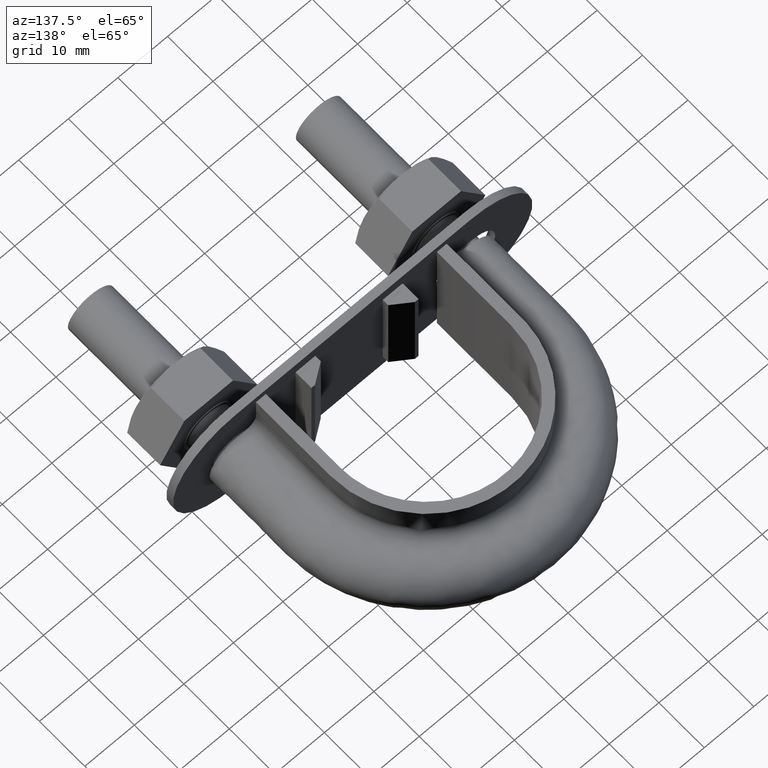
[diagram: clean part render]
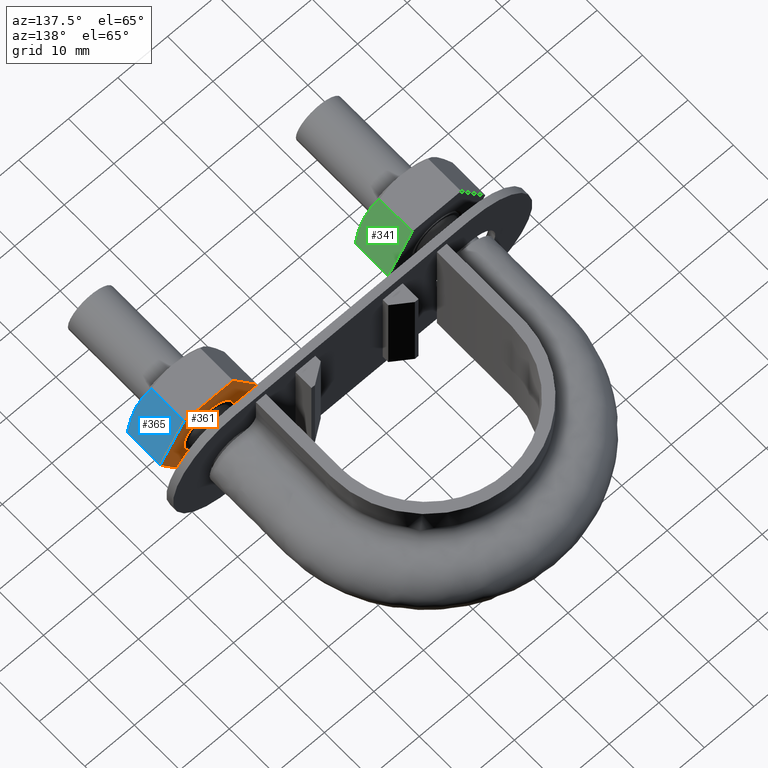
[diagram: same view with three faces highlighted in distinct colors, each labeled with its STEP entity id]
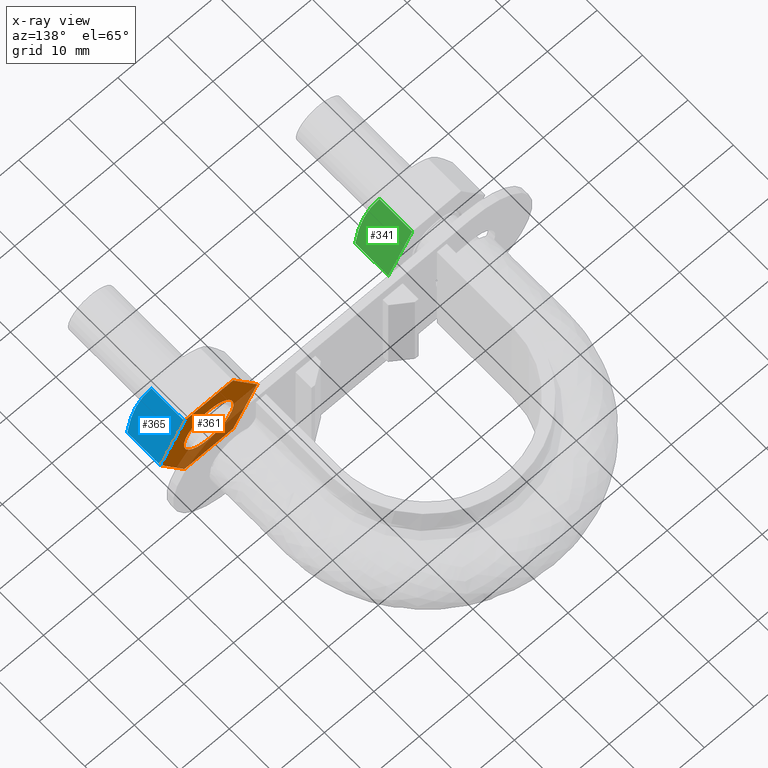
[diagram: x-ray of the same camera — body ghosted, the three highlighted faces saturated]
A machine part, auxiliary view with three faces highlighted in distinct colors.
The next image is the same camera in x-ray (body ghosted, the three faces saturated) — at least one of them is partly hidden behind the body in this view.
Their STEP definitions:

[orange] entity #361 — the highlighted planar face has unit normal (-0, -1, -0).
#361 = ADVANCED_FACE( '', ( #594, #595 ), #596, .F. );
#594 = FACE_OUTER_BOUND( '', #1672, .T. );
#595 = FACE_BOUND( '', #1673, .T. );
#596 = PLANE( '', #1674 );
#1672 = EDGE_LOOP( '', ( #2385, #2386, #2387, #2388, #2389, #2390, #2391, #2392, #2393, #2394, #2395, #2396 ) );
#1673 = EDGE_LOOP( '', ( #2397 ) );
#1674 = AXIS2_PLACEMENT_3D( '', #2398, #2399, #2400 );
#2385 = ORIENTED_EDGE( '', *, *, #2718, .T. );
#2386 = ORIENTED_EDGE( '', *, *, #2719, .T. );
#2387 = ORIENTED_EDGE( '', *, *, #2703, .T. );
#2388 = ORIENTED_EDGE( '', *, *, #2720, .T. );
#2389 = ORIENTED_EDGE( '', *, *, #2721, .T. );
#2390 = ORIENTED_EDGE( '', *, *, #2712, .T. );
#2391 = ORIENTED_EDGE( '', *, *, #2708, .T. );
#2392 = ORIENTED_EDGE( '', *, *, #2722, .T. );
#2393 = ORIENTED_EDGE( '', *, *, #2723, .T. );
#2394 = ORIENTED_EDGE( '', *, *, #2724, .T. );
#2395 = ORIENTED_EDGE( '', *, *, #2725, .T. );
#2396 = ORIENTED_EDGE( '', *, *, #2726, .T. );
#2397 = ORIENTED_EDGE( '', *, *, #2716, .F. );
#2398 = CARTESIAN_POINT( '', ( 13.2000000000004, 26.0000000000000, 8.18610159412095E-010 ) );
#2399 = DIRECTION( '', ( -2.44921270764475E-016, -1.00000000000000, -3.06151588455594E-016 ) );
#2400 = DIRECTION( '', ( 0.000000000000000, 3.06151588455594E-016, -1.00000000000000 ) );
#2703 = EDGE_CURVE( '', #3061, #3062, #3063, .F. );
#2708 = EDGE_CURVE( '', #3071, #3069, #3072, .F. );
#2712 = EDGE_CURVE( '', #3078, #3071, #3079, .T. );
#2716 = EDGE_CURVE( '', #3084, #3084, #3085, .F. );
#2718 = EDGE_CURVE( '', #3088, #3089, #3090, .F. );
#2719 = EDGE_CURVE( '', #3089, #3061, #3091, .T. );
#2720 = EDGE_CURVE( '', #3062, #3092, #3093, .T. );
#2721 = EDGE_CURVE( '', #3092, #3078, #3094, .F. );
#2722 = EDGE_CURVE( '', #3069, #3095, #3096, .T. );
#2723 = EDGE_CURVE( '', #3095, #3097, #3098, .F. );
#2724 = EDGE_CURVE( '', #3097, #3099, #3100, .T. );
#2725 = EDGE_CURVE( '', #3099, #3101, #3102, .F. );
#2726 = EDGE_CURVE( '', #3101, #3088, #3103, .T. );
#3061 = VERTEX_POINT( '', #3797 );
#3062 = VERTEX_POINT( '', #3798 );
#3063 = CIRCLE( '', #3799, 9.80000000000000 );
#3069 = VERTEX_POINT( '', #3807 );
#3071 = VERTEX_POINT( '', #3810 );
#3072 = CIRCLE( '', #3811, 9.80000000000000 );
#3078 = VERTEX_POINT( '', #3828 );
#3079 = LINE( '', #3829, #3830 );
#3084 = VERTEX_POINT( '', #3841 );
#3085 = CIRCLE( '', #3842, 5.00000000000000 );
#3088 = VERTEX_POINT( '', #3845 );
#3089 = VERTEX_POINT( '', #3846 );
#3090 = CIRCLE( '', #3847, 9.80000000000000 );
#3091 = LINE( '', #3848, #3849 );
#3092 = VERTEX_POINT( '', #3850 );
#3093 = LINE( '', #3851, #3852 );
#3094 = CIRCLE( '', #3853, 9.80000000000000 );
#3095 = VERTEX_POINT( '', #3854 );
#3096 = LINE( '', #3855, #3856 );
#3097 = VERTEX_POINT( '', #3857 );
#3098 = CIRCLE( '', #3858, 9.80000000000000 );
#3099 = VERTEX_POINT( '', #3859 );
#3100 = LINE( '', #3860, #3861 );
#3101 = VERTEX_POINT( '', #3862 );
#3102 = CIRCLE( '', #3863, 9.80000000000000 );
#3103 = LINE( '', #3864, #3865 );
#3797 = CARTESIAN_POINT( '', ( 27.8774993600129, 26.0000000000000, 8.49999999959259 ) );
#3798 = CARTESIAN_POINT( '', ( 27.9224662532239, 26.0000000000000, 8.47403835168756 ) );
#3799 = AXIS2_PLACEMENT_3D( '', #4205, #4206, #4207 );
#3807 = CARTESIAN_POINT( '', ( 27.8774993585885, 26.0000000000000, -8.50000000040992 ) );
#3810 = CARTESIAN_POINT( '', ( 27.9224662518077, 26.0000000000000, -8.47403835251024 ) );
#3811 = AXIS2_PLACEMENT_3D( '', #4214, #4215, #4216 );
#3828 = CARTESIAN_POINT( '', ( 32.7999656118170, 26.0000000000000, -0.0259616487193824 ) );
#3829 = CARTESIAN_POINT( '', ( 27.9112159314578, 26.0000000000000, -8.49352447895381 ) );
#3830 = VECTOR( '', #4218, 1000.00000000000 );
#3841 = CARTESIAN_POINT( '', ( 23.0000000000000, 26.0000000000000, -4.99999999999999 ) );
#3842 = AXIS2_PLACEMENT_3D( '', #4223, #4224, #4225 );
#3845 = CARTESIAN_POINT( '', ( 18.0775337481923, 26.0000000000000, 8.47403835251025 ) );
#3846 = CARTESIAN_POINT( '', ( 18.1225006414071, 26.0000000000000, 8.50000000040744 ) );
#3847 = AXIS2_PLACEMENT_3D( '', #4229, #4230, #4231 );
#3848 = CARTESIAN_POINT( '', ( 13.2000000007104, 26.0000000000000, 8.50000000081862 ) );
#3849 = VECTOR( '', #4232, 1000.00000000000 );
#3850 = CARTESIAN_POINT( '', ( 32.7999656118213, 26.0000000000000, 0.0259616470828531 ) );
#3851 = CARTESIAN_POINT( '', ( 27.9112159328771, 26.0000000000000, 8.49352447813351 ) );
#3852 = VECTOR( '', #4233, 1000.00000000000 );
#3853 = AXIS2_PLACEMENT_3D( '', #4234, #4235, #4236 );
#3854 = CARTESIAN_POINT( '', ( 18.1225006414115, 26.0000000000000, -8.50000000040992 ) );
#3855 = CARTESIAN_POINT( '', ( 13.2000000000004, 26.0000000000000, -8.50000000040992 ) );
#3856 = VECTOR( '', #4237, 1000.00000000000 );
#3857 = CARTESIAN_POINT( '', ( 18.0775337467761, 26.0000000000000, -8.47403835168755 ) );
#3858 = AXIS2_PLACEMENT_3D( '', #4238, #4239, #4240 );
#3859 = CARTESIAN_POINT( '', ( 13.2000343881787, 26.0000000000000, -0.0259616470828507 ) );
#3860 = CARTESIAN_POINT( '', ( 13.1887840678318, 26.0000000000000, -0.00647552063689597 ) );
#3861 = VECTOR( '', #4241, 1000.00000000000 );
#3862 = CARTESIAN_POINT( '', ( 13.2000343881830, 26.0000000000000, 0.0259616487193982 ) );
#3863 = AXIS2_PLACEMENT_3D( '', #4242, #4243, #4244 );
#3864 = CARTESIAN_POINT( '', ( 13.1887840678332, 26.0000000000000, 0.00647552227582464 ) );
#3865 = VECTOR( '', #4245, 1000.00000000000 );
#4205 = CARTESIAN_POINT( '', ( 23.0000000000000, 26.0000000000000, 7.29613851974116E-015 ) );
#4206 = DIRECTION( '', ( -2.44921270764475E-016, -1.00000000000000, -3.06151588455594E-016 ) );
#4207 = DIRECTION( '', ( 0.000000000000000, 3.06151588455594E-016, -1.00000000000000 ) );
#4214 = CARTESIAN_POINT( '', ( 23.0000000000000, 26.0000000000000, 7.29613851974116E-015 ) );
#4215 = DIRECTION( '', ( -2.44921270764475E-016, -1.00000000000000, -3.06151588455594E-016 ) );
#4216 = DIRECTION( '', ( 0.000000000000000, 3.06151588455594E-016, -1.00000000000000 ) );
#4218 = DIRECTION( '', ( -0.500000000072353, 3.87595688398672E-016, -0.866025403742666 ) );
#4223 = CARTESIAN_POINT( '', ( 23.0000000000000, 26.0000000000000, 7.29613851974116E-015 ) );
#4224 = DIRECTION( '', ( -2.44921270764475E-016, -1.00000000000000, -3.06151588455594E-016 ) );
#4225 = DIRECTION( '', ( 0.000000000000000, 3.06151588455594E-016, -1.00000000000000 ) );
#4229 = CARTESIAN_POINT( '', ( 23.0000000000000, 26.0000000000000, 7.29613851974116E-015 ) );
#4230 = DIRECTION( '', ( -2.44921270764475E-016, -1.00000000000000, -3.06151588455594E-016 ) );
#4231 = DIRECTION( '', ( 0.000000000000000, 3.06151588455594E-016, -1.00000000000000 ) );
#4232 = DIRECTION( '', ( 1.00000000000000, -2.44921270738902E-016, -8.35309044156739E-011 ) );
#4233 = DIRECTION( '', ( 0.499999999927673, 1.42674417659764E-016, -0.866025403826196 ) );
#4234 = CARTESIAN_POINT( '', ( 23.0000000000000, 26.0000000000000, 7.29613851974116E-015 ) );
#4235 = DIRECTION( '', ( -2.44921270764475E-016, -1.00000000000000, -3.06151588455594E-016 ) );
#4236 = DIRECTION( '', ( 0.000000000000000, 3.06151588455594E-016, -1.00000000000000 ) );
#4237 = DIRECTION( '', ( -1.00000000000000, 2.44921270764475E-016, -2.55724612628385E-026 ) );
#4238 = CARTESIAN_POINT( '', ( 23.0000000000000, 26.0000000000000, 7.29613851974116E-015 ) );
#4239 = DIRECTION( '', ( -2.44921270764475E-016, -1.00000000000000, -3.06151588455594E-016 ) );
#4240 = DIRECTION( '', ( 0.000000000000000, 3.06151588455594E-016, -1.00000000000000 ) );
#4241 = DIRECTION( '', ( -0.499999999927673, -1.42674417659764E-016, 0.866025403826196 ) );
#4242 = CARTESIAN_POINT( '', ( 23.0000000000000, 26.0000000000000, 7.29613851974116E-015 ) );
#4243 = DIRECTION( '', ( -2.44921270764475E-016, -1.00000000000000, -3.06151588455594E-016 ) );
#4244 = DIRECTION( '', ( 0.000000000000000, 3.06151588455594E-016, -1.00000000000000 ) );
#4245 = DIRECTION( '', ( 0.500000000072353, -3.87595688398672E-016, 0.866025403742666 ) );

[blue] entity #365 — the highlighted planar face has unit normal (-0.866, 0, -0.5).
#365 = ADVANCED_FACE( '', ( #603 ), #604, .F. );
#603 = FACE_OUTER_BOUND( '', #1681, .T. );
#604 = PLANE( '', #1682 );
#1681 = EDGE_LOOP( '', ( #2422, #2423, #2424, #2425, #2426 ) );
#1682 = AXIS2_PLACEMENT_3D( '', #2427, #2428, #2429 );
#2422 = ORIENTED_EDGE( '', *, *, #2702, .F. );
#2423 = ORIENTED_EDGE( '', *, *, #2732, .F. );
#2424 = ORIENTED_EDGE( '', *, *, #2737, .F. );
#2425 = ORIENTED_EDGE( '', *, *, #2720, .F. );
#2426 = ORIENTED_EDGE( '', *, *, #2705, .F. );
#2427 = CARTESIAN_POINT( '', ( 27.9074772888217, 26.0000000000000, 8.49999999959008 ) );
#2428 = DIRECTION( '', ( -0.866025403826197, 3.65183836625084E-016, -0.499999999927673 ) );
#2429 = DIRECTION( '', ( -0.499999999927673, 0.000000000000000, 0.866025403826196 ) );
#2702 = EDGE_CURVE( '', #3058, #3054, #3060, .T. );
#2705 = EDGE_CURVE( '', #3054, #3062, #3065, .F. );
#2720 = EDGE_CURVE( '', #3062, #3092, #3093, .T. );
#2732 = EDGE_CURVE( '', #3110, #3058, #3112, .T. );
#2737 = EDGE_CURVE( '', #3092, #3110, #3121, .T. );
#3054 = VERTEX_POINT( '', #3780 );
#3058 = VERTEX_POINT( '', #3789 );
#3060 = B_SPLINE_CURVE_WITH_KNOTS( '', 3, ( #3791, #3792, #3793, #3794, #3795, #3796 ), .UNSPECIFIED., .F., .F., ( 4, 2, 4 ), ( 1.73472347597681E-018, 0.00246745482903606, 0.00493490965807213 ), .UNSPECIFIED. );
#3062 = VERTEX_POINT( '', #3798 );
#3065 = LINE( '', #3802, #3803 );
#3092 = VERTEX_POINT( '', #3850 );
#3093 = LINE( '', #3851, #3852 );
#3110 = VERTEX_POINT( '', #3874 );
#3112 = B_SPLINE_CURVE_WITH_KNOTS( '', 3, ( #3876, #3877, #3878, #3879, #3880, #3881 ), .UNSPECIFIED., .F., .F., ( 4, 2, 4 ), ( 5.42753900630145E-017, 0.00246745482903606, 0.00493490965807207 ), .UNSPECIFIED. );
#3121 = LINE( '', #3900, #3901 );
#3780 = CARTESIAN_POINT( '', ( 27.9224662532240, 18.7505553499468, 8.47403835168751 ) );
#3789 = CARTESIAN_POINT( '', ( 30.3612159325227, 18.0000000000003, 4.24999999938521 ) );
#3791 = CARTESIAN_POINT( '', ( 30.3612159325226, 18.0000000000003, 4.24999999938520 ) );
#3792 = CARTESIAN_POINT( '', ( 29.9451329574875, 18.0000000000003, 4.97067685244953 ) );
#3793 = CARTESIAN_POINT( '', ( 29.5345628087994, 18.0716504305293, 5.68180521018556 ) );
#3794 = CARTESIAN_POINT( '', ( 28.7224943449283, 18.3328582843709, 7.08834904910604 ) );
#3795 = CARTESIAN_POINT( '', ( 28.3209300794792, 18.5215585493659, 7.78387875950207 ) );
#3796 = CARTESIAN_POINT( '', ( 27.9224662532240, 18.7505553499468, 8.47403835168746 ) );
#3798 = CARTESIAN_POINT( '', ( 27.9224662532239, 26.0000000000000, 8.47403835168756 ) );
#3802 = CARTESIAN_POINT( '', ( 27.9224662532239, 26.0000000000000, 8.47403835168757 ) );
#3803 = VECTOR( '', #4209, 1000.00000000000 );
#3850 = CARTESIAN_POINT( '', ( 32.7999656118213, 26.0000000000000, 0.0259616470828531 ) );
#3851 = CARTESIAN_POINT( '', ( 27.9112159328771, 26.0000000000000, 8.49352447813351 ) );
#3852 = VECTOR( '', #4233, 1000.00000000000 );
#3874 = CARTESIAN_POINT( '', ( 32.7999656118213, 18.7505553499468, 0.0259616470828957 ) );
#3876 = CARTESIAN_POINT( '', ( 32.7999656118213, 18.7505553499468, 0.0259616470829402 ) );
#3877 = CARTESIAN_POINT( '', ( 32.4015017855661, 18.5215585493659, 0.716121239268308 ) );
#3878 = CARTESIAN_POINT( '', ( 31.9999375201170, 18.3328582843709, 1.41165094966442 ) );
#3879 = CARTESIAN_POINT( '', ( 31.1878690562459, 18.0716504305293, 2.81819478858488 ) );
#3880 = CARTESIAN_POINT( '', ( 30.7772989075578, 18.0000000000003, 3.52932314632089 ) );
#3881 = CARTESIAN_POINT( '', ( 30.3612159325226, 18.0000000000003, 4.24999999938520 ) );
#3900 = CARTESIAN_POINT( '', ( 32.7999656118213, 26.0000000000000, 0.0259616470828523 ) );
#3901 = VECTOR( '', #4263, 1000.00000000000 );
#4209 = DIRECTION( '', ( -2.44921270764475E-016, -1.00000000000000, -3.06151588455595E-016 ) );
#4233 = DIRECTION( '', ( 0.499999999927673, 1.42674417659764E-016, -0.866025403826196 ) );
#4263 = DIRECTION( '', ( -2.44921270764475E-016, -1.00000000000000, -3.06151588455595E-016 ) );

[green] entity #341 — the highlighted planar face has unit normal (-0.866, 0, -0.5).
#341 = ADVANCED_FACE( '', ( #550 ), #551, .F. );
#550 = FACE_OUTER_BOUND( '', #1628, .T. );
#551 = PLANE( '', #1629 );
#1628 = EDGE_LOOP( '', ( #2242, #2243, #2244, #2245, #2246 ) );
#1629 = AXIS2_PLACEMENT_3D( '', #2247, #2248, #2249 );
#2242 = ORIENTED_EDGE( '', *, *, #2650, .F. );
#2243 = ORIENTED_EDGE( '', *, *, #2682, .F. );
#2244 = ORIENTED_EDGE( '', *, *, #2683, .F. );
#2245 = ORIENTED_EDGE( '', *, *, #2670, .F. );
#2246 = ORIENTED_EDGE( '', *, *, #2684, .F. );
#2247 = CARTESIAN_POINT( '', ( -18.0925227111783, 26.0000000000000, 8.49999999959008 ) );
#2248 = DIRECTION( '', ( -0.866025403826197, 3.65183836625084E-016, -0.499999999927673 ) );
#2249 = DIRECTION( '', ( -0.499999999927673, 0.000000000000000, 0.866025403826196 ) );
#2650 = EDGE_CURVE( '', #2972, #2968, #2974, .T. );
#2670 = EDGE_CURVE( '', #3010, #3012, #3013, .T. );
#2682 = EDGE_CURVE( '', #3030, #2972, #3032, .T. );
#2683 = EDGE_CURVE( '', #3012, #3030, #3033, .T. );
#2684 = EDGE_CURVE( '', #2968, #3010, #3034, .F. );
#2968 = VERTEX_POINT( '', #3616 );
#2972 = VERTEX_POINT( '', #3625 );
#2974 = B_SPLINE_CURVE_WITH_KNOTS( '', 3, ( #3627, #3628, #3629, #3630, #3631, #3632 ), .UNSPECIFIED., .F., .F., ( 4, 2, 4 ), ( 2.60208521396521E-018, 0.00246745482903606, 0.00493490965807213 ), .UNSPECIFIED. );
#3010 = VERTEX_POINT( '', #3698 );
#3012 = VERTEX_POINT( '', #3700 );
#3013 = LINE( '', #3701, #3702 );
#3030 = VERTEX_POINT( '', #3724 );
#3032 = B_SPLINE_CURVE_WITH_KNOTS( '', 3, ( #3726, #3727, #3728, #3729, #3730, #3731 ), .UNSPECIFIED., .F., .F., ( 4, 2, 4 ), ( 5.37869809040182E-017, 0.00246745482903606, 0.00493490965807207 ), .UNSPECIFIED. );
#3033 = LINE( '', #3732, #3733 );
#3034 = LINE( '', #3734, #3735 );
#3616 = CARTESIAN_POINT( '', ( -18.0775337467760, 18.7505553499468, 8.47403835168751 ) );
#3625 = CARTESIAN_POINT( '', ( -15.6387840674773, 18.0000000000003, 4.24999999938521 ) );
#3627 = CARTESIAN_POINT( '', ( -15.6387840674774, 18.0000000000003, 4.24999999938520 ) );
#3628 = CARTESIAN_POINT( '', ( -16.0548670425125, 18.0000000000003, 4.97067685244953 ) );
#3629 = CARTESIAN_POINT( '', ( -16.4654371912006, 18.0716504305293, 5.68180521018556 ) );
#3630 = CARTESIAN_POINT( '', ( -17.2775056550717, 18.3328582843709, 7.08834904910604 ) );
#3631 = CARTESIAN_POINT( '', ( -17.6790699205208, 18.5215585493659, 7.78387875950207 ) );
#3632 = CARTESIAN_POINT( '', ( -18.0775337467760, 18.7505553499468, 8.47403835168746 ) );
#3698 = CARTESIAN_POINT( '', ( -18.0775337467761, 26.0000000000000, 8.47403835168757 ) );
#3700 = CARTESIAN_POINT( '', ( -13.2000343881787, 26.0000000000000, 0.0259616470828531 ) );
#3701 = CARTESIAN_POINT( '', ( -18.0887840671229, 26.0000000000000, 8.49352447813351 ) );
#3702 = VECTOR( '', #4153, 1000.00000000000 );
#3724 = CARTESIAN_POINT( '', ( -13.2000343881787, 18.7505553499468, 0.0259616470828961 ) );
#3726 = CARTESIAN_POINT( '', ( -13.2000343881787, 18.7505553499468, 0.0259616470829422 ) );
#3727 = CARTESIAN_POINT( '', ( -13.5984982144339, 18.5215585493659, 0.716121239268310 ) );
#3728 = CARTESIAN_POINT( '', ( -14.0000624798830, 18.3328582843709, 1.41165094966442 ) );
#3729 = CARTESIAN_POINT( '', ( -14.8121309437541, 18.0716504305293, 2.81819478858488 ) );
#3730 = CARTESIAN_POINT( '', ( -15.2227010924422, 18.0000000000003, 3.52932314632089 ) );
#3731 = CARTESIAN_POINT( '', ( -15.6387840674774, 18.0000000000003, 4.24999999938520 ) );
#3732 = CARTESIAN_POINT( '', ( -13.2000343881787, 26.0000000000000, 0.0259616470828523 ) );
#3733 = VECTOR( '', #4177, 1000.00000000000 );
#3734 = CARTESIAN_POINT( '', ( -18.0775337467761, 26.0000000000000, 8.47403835168757 ) );
#3735 = VECTOR( '', #4178, 1000.00000000000 );
#4153 = DIRECTION( '', ( 0.499999999927673, 1.42674417659764E-016, -0.866025403826196 ) );
#4177 = DIRECTION( '', ( -2.44921270764475E-016, -1.00000000000000, -3.06151588455595E-016 ) );
#4178 = DIRECTION( '', ( -2.44921270764475E-016, -1.00000000000000, -3.06151588455595E-016 ) );